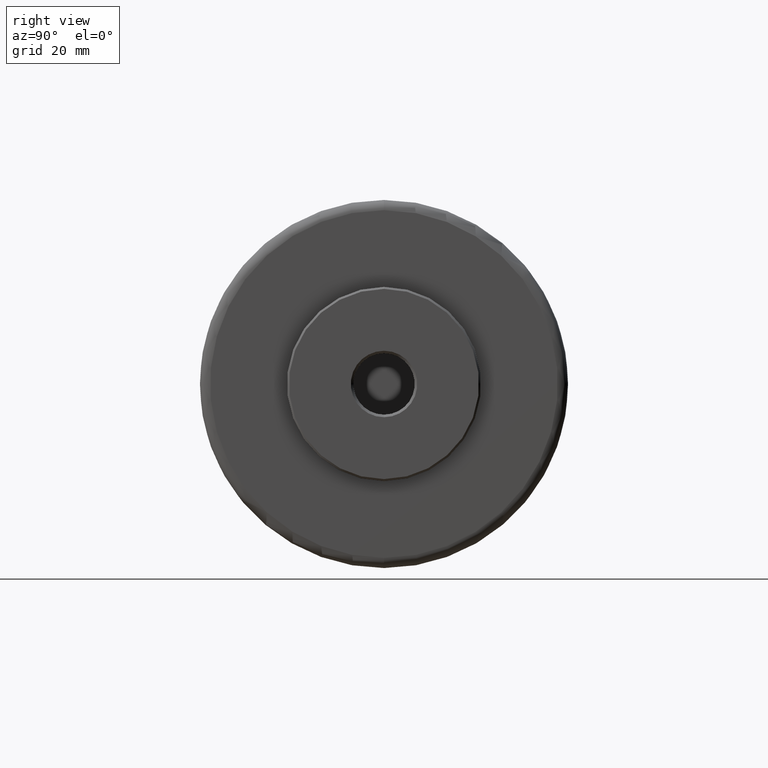
[diagram: clean part render]
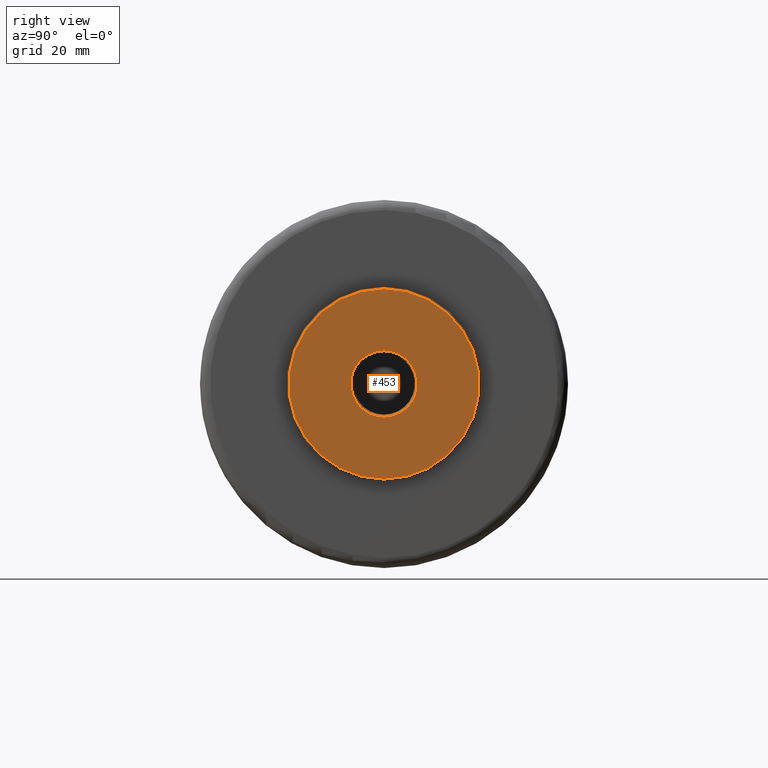
[diagram: same view with one face highlighted and labeled with its STEP entity id]
A machine part, right view. The second image highlights one B-rep face of the part: STEP entity #453.
In plain terms, the highlighted planar face has unit normal (1, -0, 0).
Its self-contained STEP definition (entity closure, byte-faithful):
#38 = AXIS2_PLACEMENT_3D ( 'NONE', #825, #182, #932 ) ;
#39 = VERTEX_POINT ( 'NONE', #1371 ) ;
#43 = AXIS2_PLACEMENT_3D ( 'NONE', #259, #1006, #378 ) ;
#56 = CARTESIAN_POINT ( 'NONE',  ( 100.5000000000000000, 0.0000000000000000000, -6.499999999999992900 ) ) ;
#76 = CIRCLE ( 'NONE', #922, 18.59999999999997300 ) ;
#80 = CARTESIAN_POINT ( 'NONE',  ( 100.5000000000000300, 0.0000000000000000000, 0.0000000000000000000 ) ) ;
#87 = ORIENTED_EDGE ( 'NONE', *, *, #929, .T. ) ;
#99 = CARTESIAN_POINT ( 'NONE',  ( 100.5000000000000300, 0.0000000000000000000, 18.59999999999997300 ) ) ;
#182 = DIRECTION ( 'NONE',  ( -1.000000000000000000, 0.0000000000000000000, -0.0000000000000000000 ) ) ;
#188 = DIRECTION ( 'NONE',  ( 0.0000000000000000000, 0.0000000000000000000, 1.000000000000000000 ) ) ;
#259 = CARTESIAN_POINT ( 'NONE',  ( 100.5000000000000000, 0.0000000000000000000, 0.0000000000000000000 ) ) ;
#267 = DIRECTION ( 'NONE',  ( 1.000000000000000000, -0.0000000000000000000, 0.0000000000000000000 ) ) ;
#301 = VERTEX_POINT ( 'NONE', #99 ) ;
#340 = AXIS2_PLACEMENT_3D ( 'NONE', #909, #267, #1011 ) ;
#378 = DIRECTION ( 'NONE',  ( 0.0000000000000000000, 0.0000000000000000000, -1.000000000000000000 ) ) ;
#395 = DIRECTION ( 'NONE',  ( -1.000000000000000000, 0.0000000000000000000, 0.0000000000000000000 ) ) ;
#453 = ADVANCED_FACE ( 'NONE', ( #781, #1092 ), #798, .T. ) ;
#462 = VERTEX_POINT ( 'NONE', #56 ) ;
#492 = AXIS2_PLACEMENT_3D ( 'NONE', #80, #828, #188 ) ;
#531 = ORIENTED_EDGE ( 'NONE', *, *, #1073, .F. ) ;
#743 = CIRCLE ( 'NONE', #492, 18.59999999999997300 ) ;
#781 = FACE_BOUND ( 'NONE', #1002, .T. ) ;
#798 = PLANE ( 'NONE',  #340 ) ;
#818 = ORIENTED_EDGE ( 'NONE', *, *, #1167, .T. ) ;
#825 = CARTESIAN_POINT ( 'NONE',  ( 100.5000000000000000, 0.0000000000000000000, 0.0000000000000000000 ) ) ;
#828 = DIRECTION ( 'NONE',  ( -1.000000000000000000, 0.0000000000000000000, 0.0000000000000000000 ) ) ;
#829 = CIRCLE ( 'NONE', #43, 6.499999999999992900 ) ;
#871 = ORIENTED_EDGE ( 'NONE', *, *, #949, .F. ) ;
#909 = CARTESIAN_POINT ( 'NONE',  ( 100.5000000000000000, -18.82320000000000300, 18.82320000000000300 ) ) ;
#922 = AXIS2_PLACEMENT_3D ( 'NONE', #1023, #395, #1132 ) ;
#929 = EDGE_CURVE ( 'NONE', #462, #1152, #1027, .T. ) ;
#932 = DIRECTION ( 'NONE',  ( 0.0000000000000000000, 0.0000000000000000000, -1.000000000000000000 ) ) ;
#949 = EDGE_CURVE ( 'NONE', #39, #301, #743, .T. ) ;
#1002 = EDGE_LOOP ( 'NONE', ( #87, #818 ) ) ;
#1006 = DIRECTION ( 'NONE',  ( -1.000000000000000000, 0.0000000000000000000, -0.0000000000000000000 ) ) ;
#1011 = DIRECTION ( 'NONE',  ( 0.0000000000000000000, 0.0000000000000000000, -1.000000000000000000 ) ) ;
#1023 = CARTESIAN_POINT ( 'NONE',  ( 100.5000000000000300, 0.0000000000000000000, 0.0000000000000000000 ) ) ;
#1027 = CIRCLE ( 'NONE', #38, 6.499999999999992900 ) ;
#1073 = EDGE_CURVE ( 'NONE', #301, #39, #76, .T. ) ;
#1092 = FACE_OUTER_BOUND ( 'NONE', #1261, .T. ) ;
#1132 = DIRECTION ( 'NONE',  ( 0.0000000000000000000, 0.0000000000000000000, 1.000000000000000000 ) ) ;
#1152 = VERTEX_POINT ( 'NONE', #1373 ) ;
#1167 = EDGE_CURVE ( 'NONE', #1152, #462, #829, .T. ) ;
#1261 = EDGE_LOOP ( 'NONE', ( #531, #871 ) ) ;
#1371 = CARTESIAN_POINT ( 'NONE',  ( 100.5000000000000300, 2.302335982397022300E-015, -18.59999999999997300 ) ) ;
#1373 = CARTESIAN_POINT ( 'NONE',  ( 100.5000000000000000, 7.960204194457786600E-016, 6.499999999999992900 ) ) ;